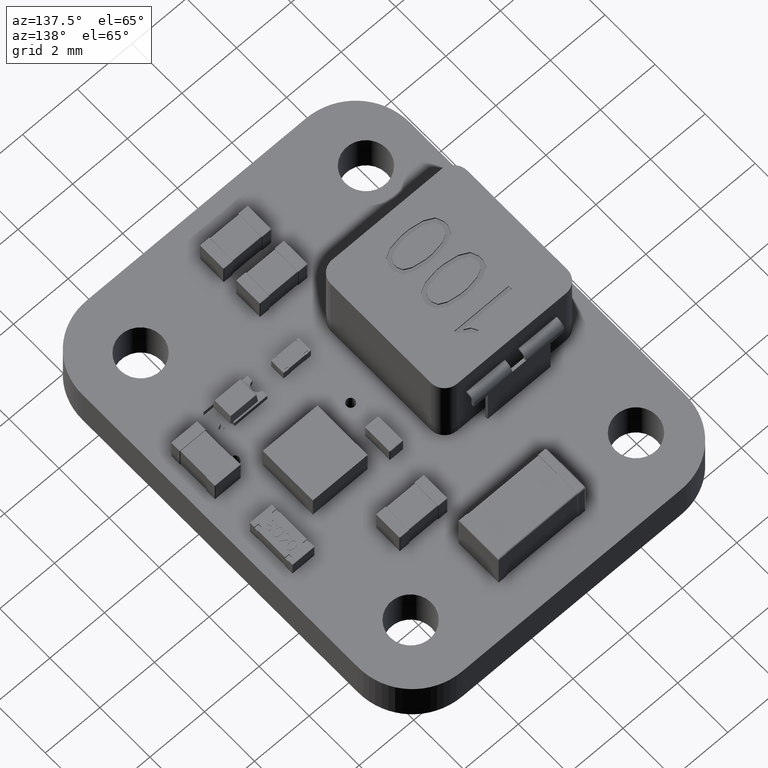
[diagram: clean part render]
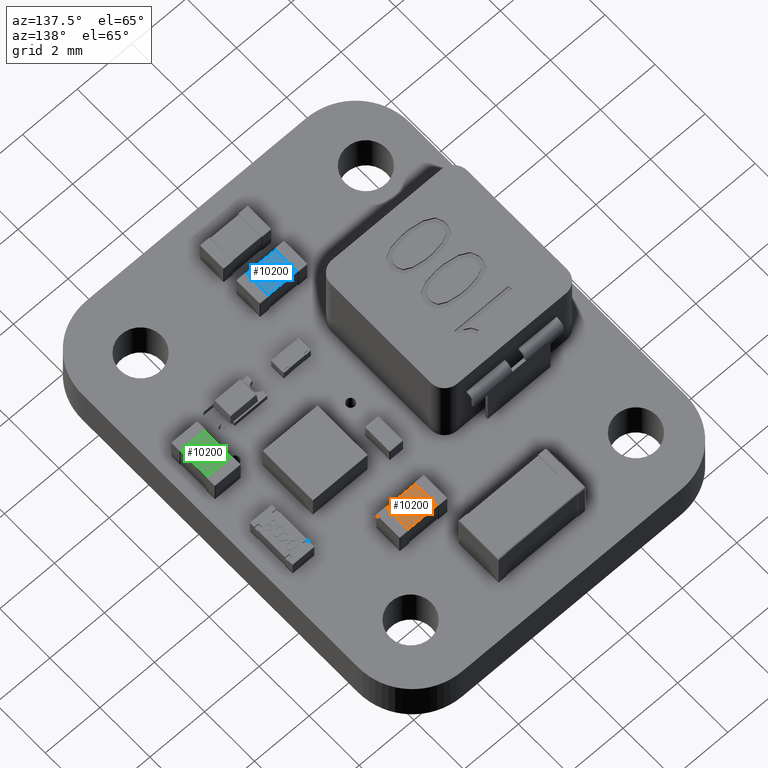
[diagram: same view with three faces highlighted in distinct colors, each labeled with its STEP entity id]
A machine part, auxiliary view with three faces highlighted in distinct colors.
Their STEP definitions:

[orange] entity #10200 — the highlighted planar face has unit normal (0, 0, 1).
#9337 = VERTEX_POINT('',#9338);
#9338 = CARTESIAN_POINT('',(0.35,1.976E-02,-0.91048));
#9344 = EDGE_CURVE('',#9337,#9345,#9347,.T.);
#9345 = VERTEX_POINT('',#9346);
#9346 = CARTESIAN_POINT('',(0.35,1.976E-02,-3.952E-02));
#9347 = LINE('',#9348,#9349);
#9348 = CARTESIAN_POINT('',(0.35,1.976E-02,-0.95));
#9349 = VECTOR('',#9350,1.);
#9350 = DIRECTION('',(-0.,-0.,1.));
#9651 = VERTEX_POINT('',#9652);
#9652 = CARTESIAN_POINT('',(1.4,1.976E-02,-3.952E-02));
#9658 = EDGE_CURVE('',#9659,#9651,#9661,.T.);
#9659 = VERTEX_POINT('',#9660);
#9660 = CARTESIAN_POINT('',(1.4,1.976E-02,-0.91048));
#9661 = LINE('',#9662,#9663);
#9662 = CARTESIAN_POINT('',(1.4,1.976E-02,-0.95));
#9663 = VECTOR('',#9664,1.);
#9664 = DIRECTION('',(-0.,-0.,1.));
#10200 = ADVANCED_FACE('',(#10201),#10217,.T.);
#10201 = FACE_BOUND('',#10202,.T.);
#10202 = EDGE_LOOP('',(#10203,#10204,#10210,#10211));
#10203 = ORIENTED_EDGE('',*,*,#9344,.F.);
#10204 = ORIENTED_EDGE('',*,*,#10205,.T.);
#10205 = EDGE_CURVE('',#9337,#9659,#10206,.T.);
#10206 = LINE('',#10207,#10208);
#10207 = CARTESIAN_POINT('',(1.4,1.976E-02,-0.91048));
#10208 = VECTOR('',#10209,1.);
#10209 = DIRECTION('',(1.,0.,-0.));
#10210 = ORIENTED_EDGE('',*,*,#9658,.T.);
#10211 = ORIENTED_EDGE('',*,*,#10212,.T.);
#10212 = EDGE_CURVE('',#9651,#9345,#10213,.T.);
#10213 = LINE('',#10214,#10215);
#10214 = CARTESIAN_POINT('',(0.35,1.976E-02,-3.952E-02));
#10215 = VECTOR('',#10216,1.);
#10216 = DIRECTION('',(-1.,-0.,-0.));
#10217 = PLANE('',#10218);
#10218 = AXIS2_PLACEMENT_3D('',#10219,#10220,#10221);
#10219 = CARTESIAN_POINT('',(0.35,1.976E-02,-0.95));
#10220 = DIRECTION('',(0.,-1.,0.));
#10221 = DIRECTION('',(0.,-0.,-1.));

[blue] entity #10200 — the highlighted planar face has unit normal (-0, -0, 1).
#9337 = VERTEX_POINT('',#9338);
#9338 = CARTESIAN_POINT('',(0.35,1.976E-02,-0.91048));
#9344 = EDGE_CURVE('',#9337,#9345,#9347,.T.);
#9345 = VERTEX_POINT('',#9346);
#9346 = CARTESIAN_POINT('',(0.35,1.976E-02,-3.952E-02));
#9347 = LINE('',#9348,#9349);
#9348 = CARTESIAN_POINT('',(0.35,1.976E-02,-0.95));
#9349 = VECTOR('',#9350,1.);
#9350 = DIRECTION('',(-0.,-0.,1.));
#9651 = VERTEX_POINT('',#9652);
#9652 = CARTESIAN_POINT('',(1.4,1.976E-02,-3.952E-02));
#9658 = EDGE_CURVE('',#9659,#9651,#9661,.T.);
#9659 = VERTEX_POINT('',#9660);
#9660 = CARTESIAN_POINT('',(1.4,1.976E-02,-0.91048));
#9661 = LINE('',#9662,#9663);
#9662 = CARTESIAN_POINT('',(1.4,1.976E-02,-0.95));
#9663 = VECTOR('',#9664,1.);
#9664 = DIRECTION('',(-0.,-0.,1.));
#10200 = ADVANCED_FACE('',(#10201),#10217,.T.);
#10201 = FACE_BOUND('',#10202,.T.);
#10202 = EDGE_LOOP('',(#10203,#10204,#10210,#10211));
#10203 = ORIENTED_EDGE('',*,*,#9344,.F.);
#10204 = ORIENTED_EDGE('',*,*,#10205,.T.);
#10205 = EDGE_CURVE('',#9337,#9659,#10206,.T.);
#10206 = LINE('',#10207,#10208);
#10207 = CARTESIAN_POINT('',(1.4,1.976E-02,-0.91048));
#10208 = VECTOR('',#10209,1.);
#10209 = DIRECTION('',(1.,0.,-0.));
#10210 = ORIENTED_EDGE('',*,*,#9658,.T.);
#10211 = ORIENTED_EDGE('',*,*,#10212,.T.);
#10212 = EDGE_CURVE('',#9651,#9345,#10213,.T.);
#10213 = LINE('',#10214,#10215);
#10214 = CARTESIAN_POINT('',(0.35,1.976E-02,-3.952E-02));
#10215 = VECTOR('',#10216,1.);
#10216 = DIRECTION('',(-1.,-0.,-0.));
#10217 = PLANE('',#10218);
#10218 = AXIS2_PLACEMENT_3D('',#10219,#10220,#10221);
#10219 = CARTESIAN_POINT('',(0.35,1.976E-02,-0.95));
#10220 = DIRECTION('',(0.,-1.,0.));
#10221 = DIRECTION('',(0.,-0.,-1.));

[green] entity #10200 — the highlighted planar face has unit normal (0, -0, 1).
#9337 = VERTEX_POINT('',#9338);
#9338 = CARTESIAN_POINT('',(0.35,1.976E-02,-0.91048));
#9344 = EDGE_CURVE('',#9337,#9345,#9347,.T.);
#9345 = VERTEX_POINT('',#9346);
#9346 = CARTESIAN_POINT('',(0.35,1.976E-02,-3.952E-02));
#9347 = LINE('',#9348,#9349);
#9348 = CARTESIAN_POINT('',(0.35,1.976E-02,-0.95));
#9349 = VECTOR('',#9350,1.);
#9350 = DIRECTION('',(-0.,-0.,1.));
#9651 = VERTEX_POINT('',#9652);
#9652 = CARTESIAN_POINT('',(1.4,1.976E-02,-3.952E-02));
#9658 = EDGE_CURVE('',#9659,#9651,#9661,.T.);
#9659 = VERTEX_POINT('',#9660);
#9660 = CARTESIAN_POINT('',(1.4,1.976E-02,-0.91048));
#9661 = LINE('',#9662,#9663);
#9662 = CARTESIAN_POINT('',(1.4,1.976E-02,-0.95));
#9663 = VECTOR('',#9664,1.);
#9664 = DIRECTION('',(-0.,-0.,1.));
#10200 = ADVANCED_FACE('',(#10201),#10217,.T.);
#10201 = FACE_BOUND('',#10202,.T.);
#10202 = EDGE_LOOP('',(#10203,#10204,#10210,#10211));
#10203 = ORIENTED_EDGE('',*,*,#9344,.F.);
#10204 = ORIENTED_EDGE('',*,*,#10205,.T.);
#10205 = EDGE_CURVE('',#9337,#9659,#10206,.T.);
#10206 = LINE('',#10207,#10208);
#10207 = CARTESIAN_POINT('',(1.4,1.976E-02,-0.91048));
#10208 = VECTOR('',#10209,1.);
#10209 = DIRECTION('',(1.,0.,-0.));
#10210 = ORIENTED_EDGE('',*,*,#9658,.T.);
#10211 = ORIENTED_EDGE('',*,*,#10212,.T.);
#10212 = EDGE_CURVE('',#9651,#9345,#10213,.T.);
#10213 = LINE('',#10214,#10215);
#10214 = CARTESIAN_POINT('',(0.35,1.976E-02,-3.952E-02));
#10215 = VECTOR('',#10216,1.);
#10216 = DIRECTION('',(-1.,-0.,-0.));
#10217 = PLANE('',#10218);
#10218 = AXIS2_PLACEMENT_3D('',#10219,#10220,#10221);
#10219 = CARTESIAN_POINT('',(0.35,1.976E-02,-0.95));
#10220 = DIRECTION('',(0.,-1.,0.));
#10221 = DIRECTION('',(0.,-0.,-1.));